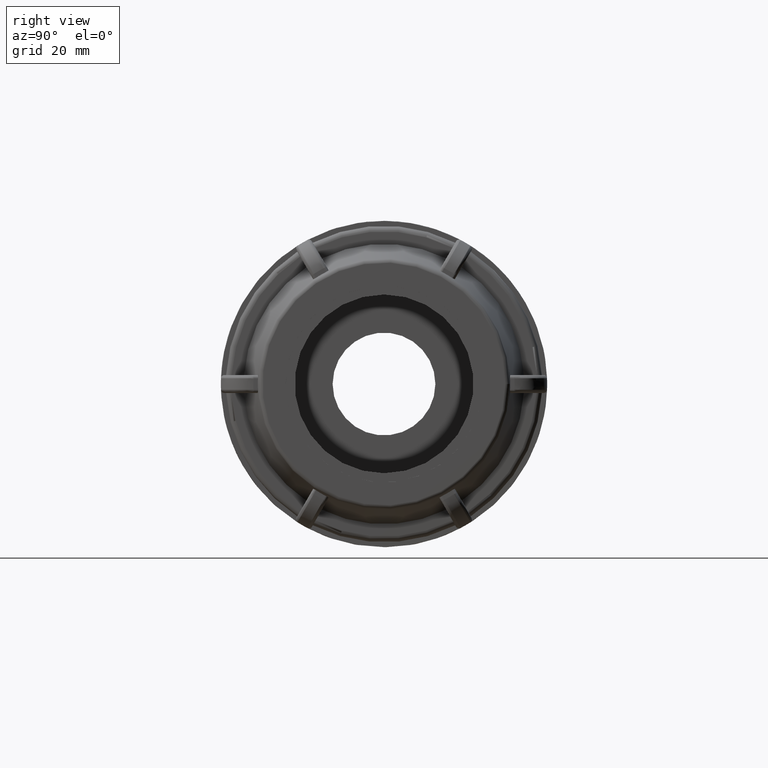
[diagram: clean part render]
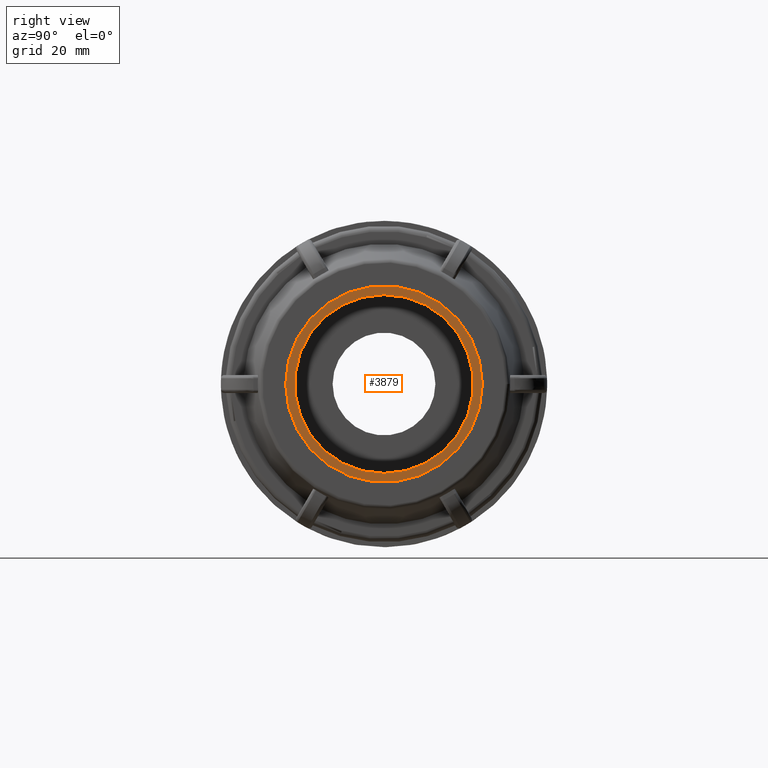
[diagram: same view with one face highlighted and labeled with its STEP entity id]
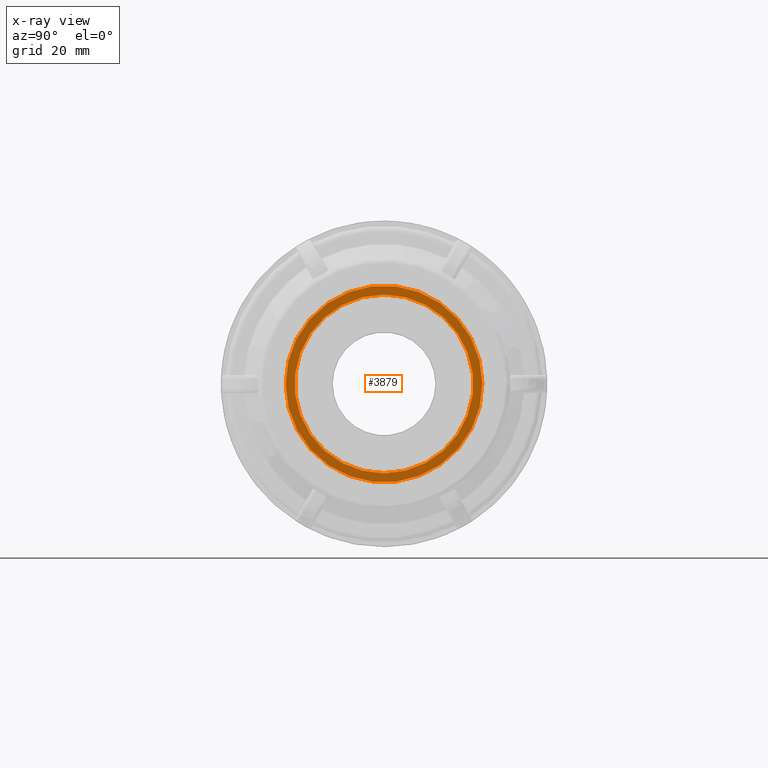
[diagram: x-ray of the same camera — body ghosted, the highlighted face saturated]
A machine part, right view. The second image highlights one B-rep face of the part: STEP entity #3879.
The next image is the same camera in x-ray: the body ghosted, the highlighted face saturated — about 0% of this face is hidden behind the body in this view.
In plain terms, the highlighted planar face has unit normal (1, 0, 0).
Its self-contained STEP definition (entity closure, byte-faithful):
#207=FACE_BOUND('',#744,.T.);
#286=PLANE('',#4287);
#493=FACE_OUTER_BOUND('',#743,.T.);
#743=EDGE_LOOP('',(#3392));
#744=EDGE_LOOP('',(#3393));
#1299=CIRCLE('',#4018,20.);
#1445=CIRCLE('',#4288,22.);
#1558=VERTEX_POINT('',#5706);
#1835=VERTEX_POINT('',#7893);
#1971=EDGE_CURVE('',#1558,#1558,#1299,.T.);
#2383=EDGE_CURVE('',#1835,#1835,#1445,.T.);
#3392=ORIENTED_EDGE('',*,*,#2383,.T.);
#3393=ORIENTED_EDGE('',*,*,#1971,.T.);
#3879=ADVANCED_FACE('',(#493,#207),#286,.T.);
#4018=AXIS2_PLACEMENT_3D('',#5707,#4615,#4616);
#4287=AXIS2_PLACEMENT_3D('',#7892,#5309,#5310);
#4288=AXIS2_PLACEMENT_3D('',#7894,#5311,#5312);
#4615=DIRECTION('center_axis',(-1.,-3.06161699786838E-16,0.));
#4616=DIRECTION('ref_axis',(0.,0.,1.));
#5309=DIRECTION('center_axis',(1.,3.06161699786838E-16,0.));
#5310=DIRECTION('ref_axis',(0.,0.,-1.));
#5311=DIRECTION('center_axis',(1.,3.06161699786838E-16,0.));
#5312=DIRECTION('ref_axis',(0.,0.,-1.));
#5706=CARTESIAN_POINT('',(62.23,1.66031489794402E-14,-20.));
#5707=CARTESIAN_POINT('Origin',(62.23,1.9052442577735E-14,0.));
#7892=CARTESIAN_POINT('Origin',(62.23,11.5,0.));
#7893=CARTESIAN_POINT('',(62.23,12.6865019576722,-17.9736659610103));
#7894=CARTESIAN_POINT('Origin',(62.23,1.9052442577735E-14,0.));